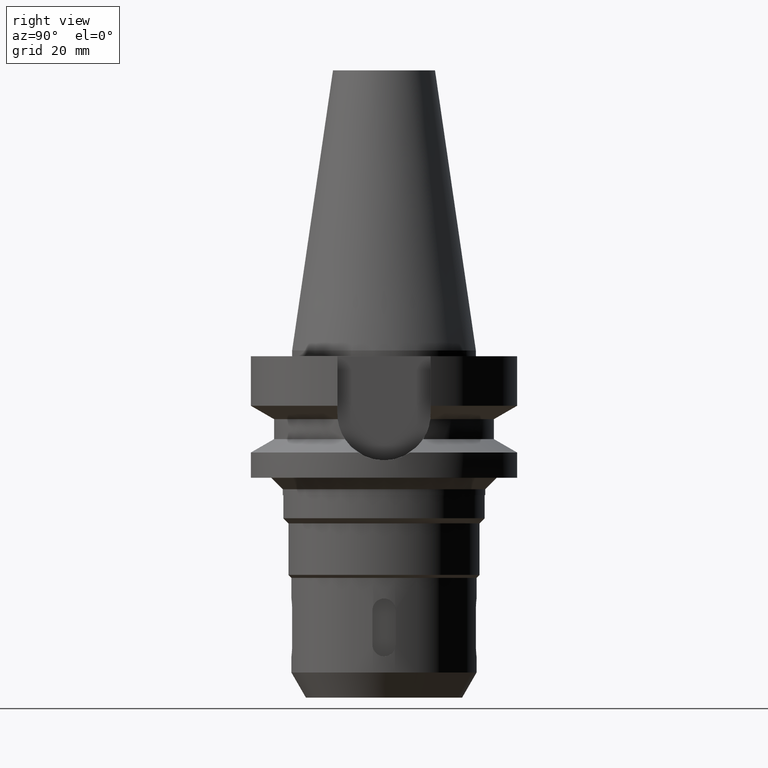
[diagram: clean part render]
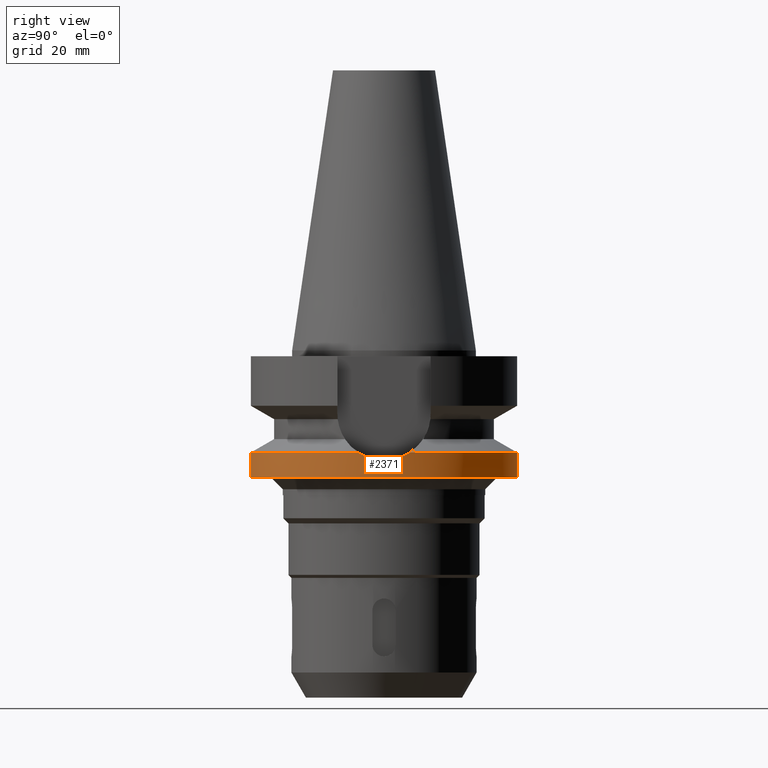
[diagram: same view with one face highlighted and labeled with its STEP entity id]
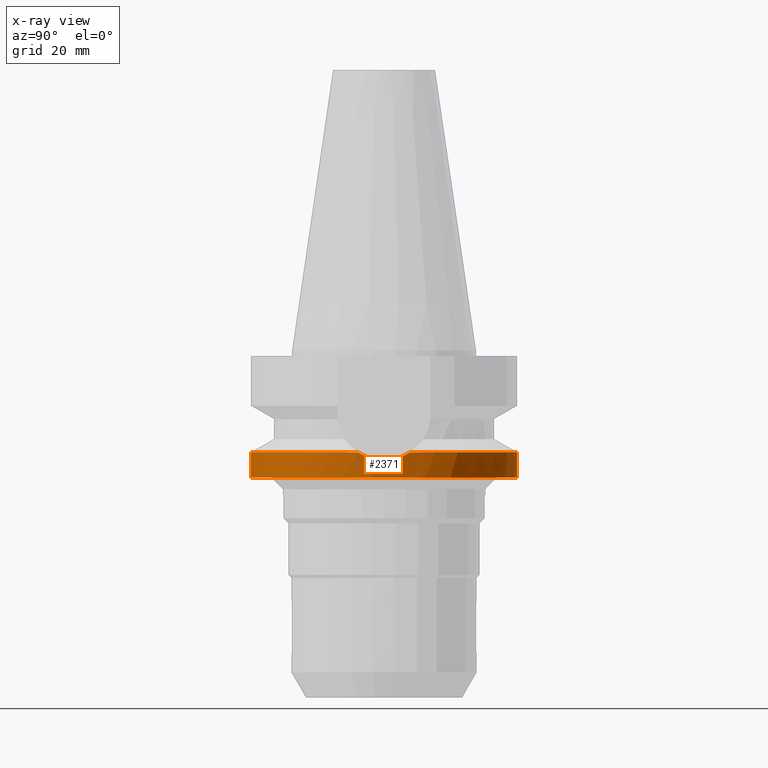
[diagram: x-ray of the same camera — body ghosted, the highlighted face saturated]
A machine part, right view. The second image highlights one B-rep face of the part: STEP entity #2371.
The next image is the same camera in x-ray: the body ghosted, the highlighted face saturated — about 0% of this face is hidden behind the body in this view.
In plain terms, the highlighted cylindrical surface (partial cylindrical patch) has radius 23 mm, axis along (0, 0, -1).
Its self-contained STEP definition (entity closure, byte-faithful):
#468=CARTESIAN_POINT('',(0.E0,1.022848384030E-14,-1.763279163029E1));
#469=DIRECTION('',(0.E0,0.E0,-1.E0));
#470=DIRECTION('',(9.807766722644E-1,-1.951335930639E-1,0.E0));
#471=AXIS2_PLACEMENT_3D('',#468,#469,#470);
#518=CARTESIAN_POINT('',(2.255786346208E1,-4.488072640470E0,-1.763279163029E1));
#519=CARTESIAN_POINT('',(2.264824563253E1,-4.033795532303E0,-1.793787800334E1));
#520=CARTESIAN_POINT('',(2.280775841429E1,-3.090260810417E0,-1.843997716949E1));
#521=CARTESIAN_POINT('',(2.296431583006E1,-1.563055178991E0,-1.889894768509E1));
#522=CARTESIAN_POINT('',(2.300000063372E1,-5.262534747697E-1,
-1.900000207062E1));
#523=CARTESIAN_POINT('',(2.300000063372E1,1.443139480059E-13,
-1.900000207062E1));
#528=CARTESIAN_POINT('',(2.300000063372E1,1.443139480059E-13,
-1.900000207062E1));
#529=CARTESIAN_POINT('',(2.300000063372E1,5.264239054890E-1,-1.900000207062E1));
#530=CARTESIAN_POINT('',(2.296429211279E1,1.563450436965E0,-1.889888055100E1));
#531=CARTESIAN_POINT('',(2.280770611213E1,3.090614014680E0,-1.843981897870E1));
#532=CARTESIAN_POINT('',(2.264821859472E1,4.033931429195E0,-1.793778673682E1));
#533=CARTESIAN_POINT('',(2.255786346208E1,4.488072640470E0,-1.763279163029E1));
#538=DIRECTION('',(0.E0,-2.603192430893E-14,-1.E0));
#539=VECTOR('',#538,4.367208369710E0);
#540=CARTESIAN_POINT('',(0.E0,2.3E1,-1.763279163029E1));
#541=LINE('',#540,#539);
#564=CARTESIAN_POINT('',(0.E0,1.022848384030E-14,-1.763279163029E1));
#565=DIRECTION('',(0.E0,0.E0,-1.E0));
#566=DIRECTION('',(0.E0,1.E0,0.E0));
#567=AXIS2_PLACEMENT_3D('',#564,#565,#566);
#612=DIRECTION('',(0.E0,2.277793377031E-14,-1.E0));
#613=VECTOR('',#612,4.367208369710E0);
#614=CARTESIAN_POINT('',(0.E0,-2.3E1,-1.763279163029E1));
#615=LINE('',#614,#613);
#619=CARTESIAN_POINT('',(0.E0,1.883751706448E-14,-2.2E1));
#620=DIRECTION('',(0.E0,0.E0,1.E0));
#621=DIRECTION('',(0.E0,-1.E0,0.E0));
#622=AXIS2_PLACEMENT_3D('',#619,#620,#621);
#1881=CARTESIAN_POINT('',(0.E0,-2.3E1,-2.2E1));
#1882=CARTESIAN_POINT('',(0.E0,2.3E1,-2.2E1));
#1883=VERTEX_POINT('',#1881);
#1884=VERTEX_POINT('',#1882);
#1885=VERTEX_POINT('',#528);
#1886=VERTEX_POINT('',#533);
#1887=VERTEX_POINT('',#518);
#1888=CARTESIAN_POINT('',(0.E0,2.3E1,-1.763279163029E1));
#1889=VERTEX_POINT('',#1888);
#1890=CARTESIAN_POINT('',(0.E0,-2.3E1,-1.763279163029E1));
#1891=VERTEX_POINT('',#1890);
#2353=CARTESIAN_POINT('',(0.E0,1.883751706448E-14,5.382E1));
#2354=DIRECTION('',(0.E0,0.E0,-1.E0));
#2355=DIRECTION('',(0.E0,-1.E0,0.E0));
#2356=AXIS2_PLACEMENT_3D('',#2353,#2354,#2355);
#2357=CYLINDRICAL_SURFACE('',#2356,2.3E1);
#2358=ORIENTED_EDGE('',*,*,#2336,.T.);
#2359=ORIENTED_EDGE('',*,*,#2334,.T.);
#2361=ORIENTED_EDGE('',*,*,#2360,.F.);
#2363=ORIENTED_EDGE('',*,*,#2362,.T.);
#2365=ORIENTED_EDGE('',*,*,#2364,.F.);
#2367=ORIENTED_EDGE('',*,*,#2366,.F.);
#2368=ORIENTED_EDGE('',*,*,#2307,.F.);
#2369=EDGE_LOOP('',(#2358,#2359,#2361,#2363,#2365,#2367,#2368));
#2370=FACE_OUTER_BOUND('',#2369,.F.);
#472=CIRCLE('',#471,2.3E1);
#524=B_SPLINE_CURVE_WITH_KNOTS('',3,(#518,#519,#520,#521,#522,#523),
.UNSPECIFIED.,.F.,.F.,(4,1,1,4),(0.E0,3.333333333333E-1,6.666666666667E-1,1.E0),
.UNSPECIFIED.);
#534=B_SPLINE_CURVE_WITH_KNOTS('',3,(#528,#529,#530,#531,#532,#533),
.UNSPECIFIED.,.F.,.F.,(4,1,1,4),(0.E0,3.333333333333E-1,6.666666666667E-1,1.E0),
.UNSPECIFIED.);
#568=CIRCLE('',#567,2.3E1);
#623=CIRCLE('',#622,2.3E1);
#2307=EDGE_CURVE('',#1887,#1891,#472,.T.);
#2334=EDGE_CURVE('',#1885,#1886,#534,.T.);
#2336=EDGE_CURVE('',#1887,#1885,#524,.T.);
#2360=EDGE_CURVE('',#1889,#1886,#568,.T.);
#2362=EDGE_CURVE('',#1889,#1884,#541,.T.);
#2364=EDGE_CURVE('',#1883,#1884,#623,.T.);
#2366=EDGE_CURVE('',#1891,#1883,#615,.T.);
#2371=ADVANCED_FACE('',(#2370),#2357,.T.);